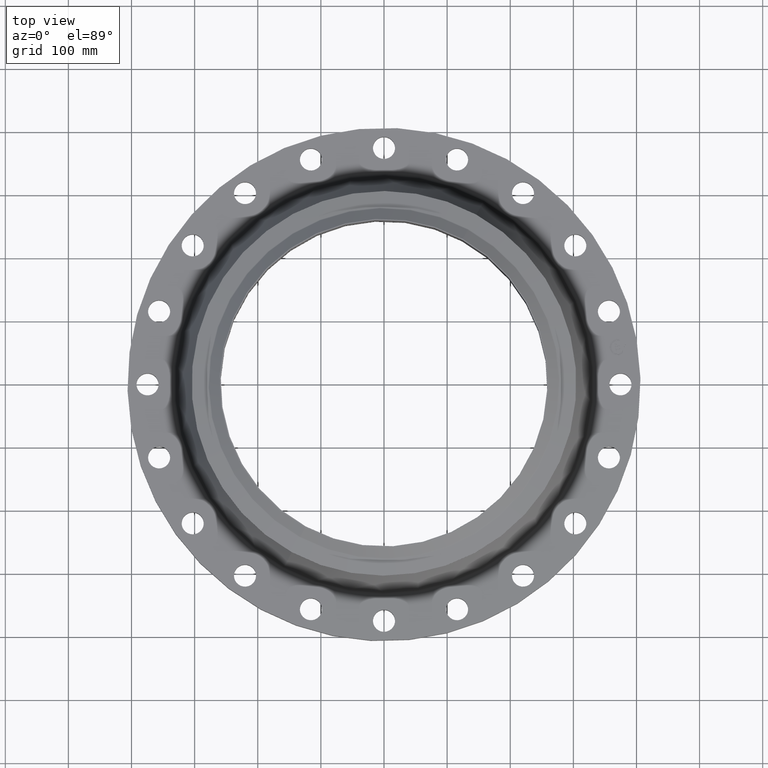
[diagram: clean part render]
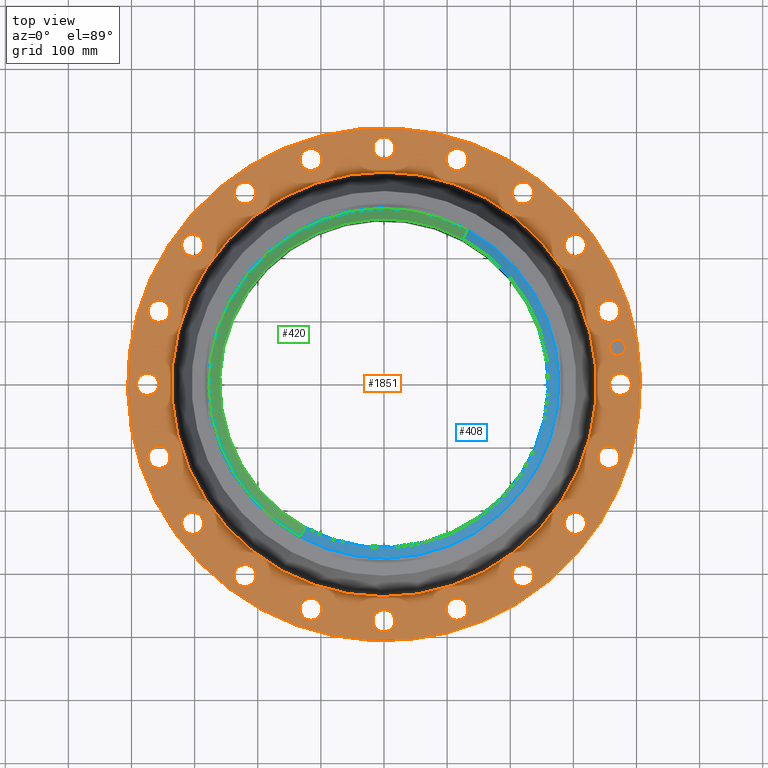
[diagram: same view with three faces highlighted in distinct colors, each labeled with its STEP entity id]
A machine part, top view with three faces highlighted in distinct colors.
Their STEP definitions:

[orange] entity #1851 — the highlighted planar face has unit normal (0, 0, -1).
#65=AXIS2_PLACEMENT_3D('Circle Axis2P3D',#63,#64,$) ;
#82=AXIS2_PLACEMENT_3D('Circle Axis2P3D',#80,#81,$) ;
#115=AXIS2_PLACEMENT_3D('Circle Axis2P3D',#113,#114,$) ;
#139=AXIS2_PLACEMENT_3D('Circle Axis2P3D',#137,#138,$) ;
#156=AXIS2_PLACEMENT_3D('Circle Axis2P3D',#154,#155,$) ;
#191=AXIS2_PLACEMENT_3D('Circle Axis2P3D',#189,#190,$) ;
#944=AXIS2_PLACEMENT_3D('Circle Axis2P3D',#942,#943,$) ;
#956=AXIS2_PLACEMENT_3D('Circle Axis2P3D',#954,#955,$) ;
#987=AXIS2_PLACEMENT_3D('Circle Axis2P3D',#985,#986,$) ;
#999=AXIS2_PLACEMENT_3D('Circle Axis2P3D',#997,#998,$) ;
#1030=AXIS2_PLACEMENT_3D('Circle Axis2P3D',#1028,#1029,$) ;
#1042=AXIS2_PLACEMENT_3D('Circle Axis2P3D',#1040,#1041,$) ;
#1073=AXIS2_PLACEMENT_3D('Circle Axis2P3D',#1071,#1072,$) ;
#1085=AXIS2_PLACEMENT_3D('Circle Axis2P3D',#1083,#1084,$) ;
#1116=AXIS2_PLACEMENT_3D('Circle Axis2P3D',#1114,#1115,$) ;
#1128=AXIS2_PLACEMENT_3D('Circle Axis2P3D',#1126,#1127,$) ;
#1159=AXIS2_PLACEMENT_3D('Circle Axis2P3D',#1157,#1158,$) ;
#1171=AXIS2_PLACEMENT_3D('Circle Axis2P3D',#1169,#1170,$) ;
#1202=AXIS2_PLACEMENT_3D('Circle Axis2P3D',#1200,#1201,$) ;
#1214=AXIS2_PLACEMENT_3D('Circle Axis2P3D',#1212,#1213,$) ;
#1245=AXIS2_PLACEMENT_3D('Circle Axis2P3D',#1243,#1244,$) ;
#1257=AXIS2_PLACEMENT_3D('Circle Axis2P3D',#1255,#1256,$) ;
#1288=AXIS2_PLACEMENT_3D('Circle Axis2P3D',#1286,#1287,$) ;
#1300=AXIS2_PLACEMENT_3D('Circle Axis2P3D',#1298,#1299,$) ;
#1331=AXIS2_PLACEMENT_3D('Circle Axis2P3D',#1329,#1330,$) ;
#1343=AXIS2_PLACEMENT_3D('Circle Axis2P3D',#1341,#1342,$) ;
#1374=AXIS2_PLACEMENT_3D('Circle Axis2P3D',#1372,#1373,$) ;
#1386=AXIS2_PLACEMENT_3D('Circle Axis2P3D',#1384,#1385,$) ;
#1417=AXIS2_PLACEMENT_3D('Circle Axis2P3D',#1415,#1416,$) ;
#1429=AXIS2_PLACEMENT_3D('Circle Axis2P3D',#1427,#1428,$) ;
#1460=AXIS2_PLACEMENT_3D('Circle Axis2P3D',#1458,#1459,$) ;
#1472=AXIS2_PLACEMENT_3D('Circle Axis2P3D',#1470,#1471,$) ;
#1503=AXIS2_PLACEMENT_3D('Circle Axis2P3D',#1501,#1502,$) ;
#1515=AXIS2_PLACEMENT_3D('Circle Axis2P3D',#1513,#1514,$) ;
#1546=AXIS2_PLACEMENT_3D('Circle Axis2P3D',#1544,#1545,$) ;
#1558=AXIS2_PLACEMENT_3D('Circle Axis2P3D',#1556,#1557,$) ;
#1589=AXIS2_PLACEMENT_3D('Circle Axis2P3D',#1587,#1588,$) ;
#1601=AXIS2_PLACEMENT_3D('Circle Axis2P3D',#1599,#1600,$) ;
#1632=AXIS2_PLACEMENT_3D('Circle Axis2P3D',#1630,#1631,$) ;
#1644=AXIS2_PLACEMENT_3D('Circle Axis2P3D',#1642,#1643,$) ;
#1675=AXIS2_PLACEMENT_3D('Circle Axis2P3D',#1673,#1674,$) ;
#1687=AXIS2_PLACEMENT_3D('Circle Axis2P3D',#1685,#1686,$) ;
#1718=AXIS2_PLACEMENT_3D('Circle Axis2P3D',#1716,#1717,$) ;
#1730=AXIS2_PLACEMENT_3D('Circle Axis2P3D',#1728,#1729,$) ;
#1743=AXIS2_PLACEMENT_3D('Plane Axis2P3D',#1740,#1741,#1742) ;
#1835=AXIS2_PLACEMENT_3D('Circle Axis2P3D',#1833,#1834,$) ;
#1844=AXIS2_PLACEMENT_3D('Circle Axis2P3D',#1842,#1843,$) ;
#46=CARTESIAN_POINT('Vertex',(14.1444680324,0.330803621638,1.88000000001)) ;
#60=CARTESIAN_POINT('Vertex',(15.3555319678,-0.330803621638,1.88000000001)) ;
#63=CARTESIAN_POINT('Axis2P3D Location',(14.7500000001,0.,1.88000000001)) ;
#80=CARTESIAN_POINT('Axis2P3D Location',(14.7500000001,0.,1.88000000001)) ;
#110=CARTESIAN_POINT('Vertex',(-7.6708086177,-14.0413209903,1.88000000001)) ;
#113=CARTESIAN_POINT('Axis2P3D Location',(0.,0.,1.88000000001)) ;
#117=CARTESIAN_POINT('Vertex',(7.6708086177,14.0413209903,1.88000000001)) ;
#137=CARTESIAN_POINT('Axis2P3D Location',(0.,0.,1.88000000001)) ;
#154=CARTESIAN_POINT('Axis2P3D Location',(0.,0.,1.88000000001)) ;
#158=CARTESIAN_POINT('Vertex',(6.34985835979,11.6233377622,1.88000000001)) ;
#160=CARTESIAN_POINT('Vertex',(-6.34985835979,-11.6233377622,1.88000000001)) ;
#189=CARTESIAN_POINT('Axis2P3D Location',(0.,0.,1.88000000001)) ;
#932=CARTESIAN_POINT('Vertex',(-13.5544124326,4.05626805842,1.88000000001)) ;
#939=CARTESIAN_POINT('Vertex',(-14.5017547982,5.05973327568,1.88000000001)) ;
#942=CARTESIAN_POINT('Axis2P3D Location',(-14.0280836154,4.55800066705,1.88000000001)) ;
#954=CARTESIAN_POINT('Axis2P3D Location',(-14.0280836154,4.55800066705,1.88000000001)) ;
#975=CARTESIAN_POINT('Vertex',(11.6375565048,-8.04628395923,1.88000000001)) ;
#982=CARTESIAN_POINT('Vertex',(12.2284448294,-9.29338098346,1.88000000001)) ;
#985=CARTESIAN_POINT('Axis2P3D Location',(11.9330006671,-8.66983247135,1.88000000001)) ;
#997=CARTESIAN_POINT('Axis2P3D Location',(11.9330006671,-8.66983247135,1.88000000001)) ;
#1018=CARTESIAN_POINT('Vertex',(-11.6375565048,8.04628395923,1.88000000001)) ;
#1025=CARTESIAN_POINT('Vertex',(-12.2284448294,9.29338098346,1.88000000001)) ;
#1028=CARTESIAN_POINT('Axis2P3D Location',(-11.9330006671,8.66983247135,1.88000000001)) ;
#1040=CARTESIAN_POINT('Axis2P3D Location',(-11.9330006671,8.66983247135,1.88000000001)) ;
#1061=CARTESIAN_POINT('Vertex',(8.58153546265,-11.2486735244,1.88000000001)) ;
#1068=CARTESIAN_POINT('Vertex',(8.75812948005,-12.6173278098,1.88000000001)) ;
#1071=CARTESIAN_POINT('Axis2P3D Location',(8.66983247135,-11.9330006671,1.88000000001)) ;
#1083=CARTESIAN_POINT('Axis2P3D Location',(8.66983247135,-11.9330006671,1.88000000001)) ;
#1104=CARTESIAN_POINT('Vertex',(-8.58153546265,11.2486735244,1.88000000001)) ;
#1111=CARTESIAN_POINT('Vertex',(-8.75812948005,12.6173278098,1.88000000001)) ;
#1114=CARTESIAN_POINT('Axis2P3D Location',(-8.66983247135,11.9330006671,1.88000000001)) ;
#1126=CARTESIAN_POINT('Axis2P3D Location',(-8.66983247135,11.9330006671,1.88000000001)) ;
#1147=CARTESIAN_POINT('Vertex',(4.68549393836,-13.3499645508,1.88000000001)) ;
#1154=CARTESIAN_POINT('Vertex',(4.43050739573,-14.70620268,1.88000000001)) ;
#1157=CARTESIAN_POINT('Axis2P3D Location',(4.55800066705,-14.0280836154,1.88000000001)) ;
#1169=CARTESIAN_POINT('Axis2P3D Location',(4.55800066705,-14.0280836154,1.88000000001)) ;
#1190=CARTESIAN_POINT('Vertex',(-4.68549393836,13.3499645508,1.88000000001)) ;
#1197=CARTESIAN_POINT('Vertex',(-4.43050739573,14.70620268,1.88000000001)) ;
#1200=CARTESIAN_POINT('Axis2P3D Location',(-4.55800066705,14.0280836154,1.88000000001)) ;
#1212=CARTESIAN_POINT('Axis2P3D Location',(-4.55800066705,14.0280836154,1.88000000001)) ;
#1233=CARTESIAN_POINT('Vertex',(0.330803621638,-14.1444680324,1.88000000001)) ;
#1240=CARTESIAN_POINT('Vertex',(-0.330803621638,-15.3555319678,1.88000000001)) ;
#1243=CARTESIAN_POINT('Axis2P3D Location',(4.17833493703E-015,-14.7500000001,1.88000000001)) ;
#1255=CARTESIAN_POINT('Axis2P3D Location',(4.17833493703E-015,-14.7500000001,1.88000000001)) ;
#1276=CARTESIAN_POINT('Vertex',(-0.330803621638,14.1444680324,1.88000000001)) ;
#1283=CARTESIAN_POINT('Vertex',(0.330803621638,15.3555319678,1.88000000001)) ;
#1286=CARTESIAN_POINT('Axis2P3D Location',(-1.58101627338E-014,14.7500000001,1.88000000001)) ;
#1298=CARTESIAN_POINT('Axis2P3D Location',(-1.58101627338E-014,14.7500000001,1.88000000001)) ;
#1319=CARTESIAN_POINT('Vertex',(-4.05626805842,-13.5544124326,1.88000000001)) ;
#1326=CARTESIAN_POINT('Vertex',(-5.05973327568,-14.5017547982,1.88000000001)) ;
#1329=CARTESIAN_POINT('Axis2P3D Location',(-4.55800066705,-14.0280836154,1.88000000001)) ;
#1341=CARTESIAN_POINT('Axis2P3D Location',(-4.55800066705,-14.0280836154,1.88000000001)) ;
#1362=CARTESIAN_POINT('Vertex',(4.05626805842,13.5544124326,1.88000000001)) ;
#1369=CARTESIAN_POINT('Vertex',(5.05973327568,14.5017547982,1.88000000001)) ;
#1372=CARTESIAN_POINT('Axis2P3D Location',(4.55800066705,14.0280836154,1.88000000001)) ;
#1384=CARTESIAN_POINT('Axis2P3D Location',(4.55800066705,14.0280836154,1.88000000001)) ;
#1405=CARTESIAN_POINT('Vertex',(-8.04628395923,-11.6375565048,1.88000000001)) ;
#1412=CARTESIAN_POINT('Vertex',(-9.29338098346,-12.2284448294,1.88000000001)) ;
#1415=CARTESIAN_POINT('Axis2P3D Location',(-8.66983247135,-11.9330006671,1.88000000001)) ;
#1427=CARTESIAN_POINT('Axis2P3D Location',(-8.66983247135,-11.9330006671,1.88000000001)) ;
#1448=CARTESIAN_POINT('Vertex',(8.04628395923,11.6375565048,1.88000000001)) ;
#1455=CARTESIAN_POINT('Vertex',(9.29338098346,12.2284448294,1.88000000001)) ;
#1458=CARTESIAN_POINT('Axis2P3D Location',(8.66983247135,11.9330006671,1.88000000001)) ;
#1470=CARTESIAN_POINT('Axis2P3D Location',(8.66983247135,11.9330006671,1.88000000001)) ;
#1491=CARTESIAN_POINT('Vertex',(-11.2486735244,-8.58153546265,1.88000000001)) ;
#1498=CARTESIAN_POINT('Vertex',(-12.6173278098,-8.75812948005,1.88000000001)) ;
#1501=CARTESIAN_POINT('Axis2P3D Location',(-11.9330006671,-8.66983247135,1.88000000001)) ;
#1513=CARTESIAN_POINT('Axis2P3D Location',(-11.9330006671,-8.66983247135,1.88000000001)) ;
#1534=CARTESIAN_POINT('Vertex',(11.2486735244,8.58153546265,1.88000000001)) ;
#1541=CARTESIAN_POINT('Vertex',(12.6173278098,8.75812948005,1.88000000001)) ;
#1544=CARTESIAN_POINT('Axis2P3D Location',(11.9330006671,8.66983247135,1.88000000001)) ;
#1556=CARTESIAN_POINT('Axis2P3D Location',(11.9330006671,8.66983247135,1.88000000001)) ;
#1577=CARTESIAN_POINT('Vertex',(-13.3499645508,-4.68549393836,1.88000000001)) ;
#1584=CARTESIAN_POINT('Vertex',(-14.70620268,-4.43050739573,1.88000000001)) ;
#1587=CARTESIAN_POINT('Axis2P3D Location',(-14.0280836154,-4.55800066705,1.88000000001)) ;
#1599=CARTESIAN_POINT('Axis2P3D Location',(-14.0280836154,-4.55800066705,1.88000000001)) ;
#1620=CARTESIAN_POINT('Vertex',(13.3499645508,4.68549393836,1.88000000001)) ;
#1627=CARTESIAN_POINT('Vertex',(14.70620268,4.43050739573,1.88000000001)) ;
#1630=CARTESIAN_POINT('Axis2P3D Location',(14.0280836154,4.55800066705,1.88000000001)) ;
#1642=CARTESIAN_POINT('Axis2P3D Location',(14.0280836154,4.55800066705,1.88000000001)) ;
#1663=CARTESIAN_POINT('Vertex',(-14.1444680324,-0.330803621638,1.88000000001)) ;
#1670=CARTESIAN_POINT('Vertex',(-15.3555319678,0.330803621638,1.88000000001)) ;
#1673=CARTESIAN_POINT('Axis2P3D Location',(-14.7500000001,-8.35666987406E-015,1.88000000001)) ;
#1685=CARTESIAN_POINT('Axis2P3D Location',(-14.7500000001,-8.35666987406E-015,1.88000000001)) ;
#1706=CARTESIAN_POINT('Vertex',(13.5544124326,-4.05626805842,1.88000000001)) ;
#1713=CARTESIAN_POINT('Vertex',(14.5017547982,-5.05973327568,1.88000000001)) ;
#1716=CARTESIAN_POINT('Axis2P3D Location',(14.0280836154,-4.55800066705,1.88000000001)) ;
#1728=CARTESIAN_POINT('Axis2P3D Location',(14.0280836154,-4.55800066705,1.88000000001)) ;
#1740=CARTESIAN_POINT('Axis2P3D Location',(0.,16.0000000001,1.88000000001)) ;
#1833=CARTESIAN_POINT('Axis2P3D Location',(14.5684030238,2.30740835935,1.88000000001)) ;
#1837=CARTESIAN_POINT('Vertex',(14.4901859706,2.80125139776,1.88000000001)) ;
#1839=CARTESIAN_POINT('Vertex',(14.6466200771,1.81356532095,1.88000000001)) ;
#1842=CARTESIAN_POINT('Axis2P3D Location',(14.5684030238,2.30740835935,1.88000000001)) ;
#64=DIRECTION('Axis2P3D Direction',(0.,-0.,-0.0393700787402)) ;
#81=DIRECTION('Axis2P3D Direction',(0.,-0.,-0.0393700787402)) ;
#114=DIRECTION('Axis2P3D Direction',(0.,0.,-0.0393700787402)) ;
#138=DIRECTION('Axis2P3D Direction',(0.,0.,-0.0393700787402)) ;
#155=DIRECTION('Axis2P3D Direction',(0.,0.,-0.0393700787402)) ;
#190=DIRECTION('Axis2P3D Direction',(0.,0.,-0.0393700787402)) ;
#943=DIRECTION('Axis2P3D Direction',(0.,0.,-0.0393700787402)) ;
#955=DIRECTION('Axis2P3D Direction',(0.,0.,-0.0393700787402)) ;
#986=DIRECTION('Axis2P3D Direction',(0.,-0.,-0.0393700787402)) ;
#998=DIRECTION('Axis2P3D Direction',(0.,-0.,-0.0393700787402)) ;
#1029=DIRECTION('Axis2P3D Direction',(0.,0.,-0.0393700787402)) ;
#1041=DIRECTION('Axis2P3D Direction',(0.,0.,-0.0393700787402)) ;
#1072=DIRECTION('Axis2P3D Direction',(0.,-0.,-0.0393700787402)) ;
#1084=DIRECTION('Axis2P3D Direction',(0.,-0.,-0.0393700787402)) ;
#1115=DIRECTION('Axis2P3D Direction',(0.,0.,-0.0393700787402)) ;
#1127=DIRECTION('Axis2P3D Direction',(0.,0.,-0.0393700787402)) ;
#1158=DIRECTION('Axis2P3D Direction',(0.,-0.,-0.0393700787402)) ;
#1170=DIRECTION('Axis2P3D Direction',(0.,-0.,-0.0393700787402)) ;
#1201=DIRECTION('Axis2P3D Direction',(0.,0.,-0.0393700787402)) ;
#1213=DIRECTION('Axis2P3D Direction',(0.,0.,-0.0393700787402)) ;
#1244=DIRECTION('Axis2P3D Direction',(0.,-0.,-0.0393700787402)) ;
#1256=DIRECTION('Axis2P3D Direction',(0.,-0.,-0.0393700787402)) ;
#1287=DIRECTION('Axis2P3D Direction',(0.,0.,-0.0393700787402)) ;
#1299=DIRECTION('Axis2P3D Direction',(0.,0.,-0.0393700787402)) ;
#1330=DIRECTION('Axis2P3D Direction',(-0.,0.,-0.0393700787402)) ;
#1342=DIRECTION('Axis2P3D Direction',(-0.,0.,-0.0393700787402)) ;
#1373=DIRECTION('Axis2P3D Direction',(0.,0.,-0.0393700787402)) ;
#1385=DIRECTION('Axis2P3D Direction',(0.,0.,-0.0393700787402)) ;
#1416=DIRECTION('Axis2P3D Direction',(-0.,0.,-0.0393700787402)) ;
#1428=DIRECTION('Axis2P3D Direction',(-0.,0.,-0.0393700787402)) ;
#1459=DIRECTION('Axis2P3D Direction',(0.,0.,-0.0393700787402)) ;
#1471=DIRECTION('Axis2P3D Direction',(0.,0.,-0.0393700787402)) ;
#1502=DIRECTION('Axis2P3D Direction',(-0.,0.,-0.0393700787402)) ;
#1514=DIRECTION('Axis2P3D Direction',(-0.,0.,-0.0393700787402)) ;
#1545=DIRECTION('Axis2P3D Direction',(0.,0.,-0.0393700787402)) ;
#1557=DIRECTION('Axis2P3D Direction',(0.,0.,-0.0393700787402)) ;
#1588=DIRECTION('Axis2P3D Direction',(-0.,0.,-0.0393700787402)) ;
#1600=DIRECTION('Axis2P3D Direction',(-0.,0.,-0.0393700787402)) ;
#1631=DIRECTION('Axis2P3D Direction',(0.,0.,-0.0393700787402)) ;
#1643=DIRECTION('Axis2P3D Direction',(0.,0.,-0.0393700787402)) ;
#1674=DIRECTION('Axis2P3D Direction',(-0.,0.,-0.0393700787402)) ;
#1686=DIRECTION('Axis2P3D Direction',(-0.,0.,-0.0393700787402)) ;
#1717=DIRECTION('Axis2P3D Direction',(0.,-0.,-0.0393700787402)) ;
#1729=DIRECTION('Axis2P3D Direction',(0.,-0.,-0.0393700787402)) ;
#1741=DIRECTION('Axis2P3D Direction',(0.,0.,-0.0393700787402)) ;
#1742=DIRECTION('Axis2P3D XDirection',(0.0393700787402,0.,0.)) ;
#1834=DIRECTION('Axis2P3D Direction',(0.,0.,-0.0393700787402)) ;
#1843=DIRECTION('Axis2P3D Direction',(0.,0.,-0.0393700787402)) ;
#1746=ORIENTED_EDGE('',*,*,#141,.F.) ;
#1747=ORIENTED_EDGE('',*,*,#119,.F.) ;
#1750=ORIENTED_EDGE('',*,*,#67,.T.) ;
#1751=ORIENTED_EDGE('',*,*,#84,.T.) ;
#1754=ORIENTED_EDGE('',*,*,#193,.T.) ;
#1755=ORIENTED_EDGE('',*,*,#162,.T.) ;
#1758=ORIENTED_EDGE('',*,*,#1732,.T.) ;
#1759=ORIENTED_EDGE('',*,*,#1720,.T.) ;
#1762=ORIENTED_EDGE('',*,*,#1001,.T.) ;
#1763=ORIENTED_EDGE('',*,*,#989,.T.) ;
#1766=ORIENTED_EDGE('',*,*,#1087,.T.) ;
#1767=ORIENTED_EDGE('',*,*,#1075,.T.) ;
#1770=ORIENTED_EDGE('',*,*,#1173,.T.) ;
#1771=ORIENTED_EDGE('',*,*,#1161,.T.) ;
#1774=ORIENTED_EDGE('',*,*,#1259,.T.) ;
#1775=ORIENTED_EDGE('',*,*,#1247,.T.) ;
#1778=ORIENTED_EDGE('',*,*,#1345,.T.) ;
#1779=ORIENTED_EDGE('',*,*,#1333,.T.) ;
#1782=ORIENTED_EDGE('',*,*,#1431,.T.) ;
#1783=ORIENTED_EDGE('',*,*,#1419,.T.) ;
#1786=ORIENTED_EDGE('',*,*,#1517,.T.) ;
#1787=ORIENTED_EDGE('',*,*,#1505,.T.) ;
#1790=ORIENTED_EDGE('',*,*,#1603,.T.) ;
#1791=ORIENTED_EDGE('',*,*,#1591,.T.) ;
#1794=ORIENTED_EDGE('',*,*,#1689,.T.) ;
#1795=ORIENTED_EDGE('',*,*,#1677,.T.) ;
#1798=ORIENTED_EDGE('',*,*,#958,.T.) ;
#1799=ORIENTED_EDGE('',*,*,#946,.T.) ;
#1802=ORIENTED_EDGE('',*,*,#1044,.T.) ;
#1803=ORIENTED_EDGE('',*,*,#1032,.T.) ;
#1806=ORIENTED_EDGE('',*,*,#1130,.T.) ;
#1807=ORIENTED_EDGE('',*,*,#1118,.T.) ;
#1810=ORIENTED_EDGE('',*,*,#1216,.T.) ;
#1811=ORIENTED_EDGE('',*,*,#1204,.T.) ;
#1814=ORIENTED_EDGE('',*,*,#1302,.T.) ;
#1815=ORIENTED_EDGE('',*,*,#1290,.T.) ;
#1818=ORIENTED_EDGE('',*,*,#1388,.T.) ;
#1819=ORIENTED_EDGE('',*,*,#1376,.T.) ;
#1822=ORIENTED_EDGE('',*,*,#1474,.T.) ;
#1823=ORIENTED_EDGE('',*,*,#1462,.T.) ;
#1826=ORIENTED_EDGE('',*,*,#1560,.T.) ;
#1827=ORIENTED_EDGE('',*,*,#1548,.T.) ;
#1830=ORIENTED_EDGE('',*,*,#1646,.T.) ;
#1831=ORIENTED_EDGE('',*,*,#1634,.T.) ;
#1848=ORIENTED_EDGE('',*,*,#1841,.T.) ;
#1849=ORIENTED_EDGE('',*,*,#1846,.T.) ;
#1752=FACE_BOUND('',#1749,.T.) ;
#1756=FACE_BOUND('',#1753,.T.) ;
#1760=FACE_BOUND('',#1757,.T.) ;
#1764=FACE_BOUND('',#1761,.T.) ;
#1768=FACE_BOUND('',#1765,.T.) ;
#1772=FACE_BOUND('',#1769,.T.) ;
#1776=FACE_BOUND('',#1773,.T.) ;
#1780=FACE_BOUND('',#1777,.T.) ;
#1784=FACE_BOUND('',#1781,.T.) ;
#1788=FACE_BOUND('',#1785,.T.) ;
#1792=FACE_BOUND('',#1789,.T.) ;
#1796=FACE_BOUND('',#1793,.T.) ;
#1800=FACE_BOUND('',#1797,.T.) ;
#1804=FACE_BOUND('',#1801,.T.) ;
#1808=FACE_BOUND('',#1805,.T.) ;
#1812=FACE_BOUND('',#1809,.T.) ;
#1816=FACE_BOUND('',#1813,.T.) ;
#1820=FACE_BOUND('',#1817,.T.) ;
#1824=FACE_BOUND('',#1821,.T.) ;
#1828=FACE_BOUND('',#1825,.T.) ;
#1832=FACE_BOUND('',#1829,.T.) ;
#1850=FACE_BOUND('',#1847,.T.) ;
#1851=ADVANCED_FACE('PartBody',(#1748,#1752,#1756,#1760,#1764,#1768,#1772,#1776,#1780,#1784,#1788,#1792,#1796,#1800,#1804,#1808,#1812,#1816,#1820,#1824,#1828,#1832,#1850),#1744,.F.) ;
#66=CIRCLE('generated circle',#65,0.690000000003) ;
#83=CIRCLE('generated circle',#82,0.690000000003) ;
#116=CIRCLE('generated circle',#115,16.0000000001) ;
#140=CIRCLE('generated circle',#139,16.0000000001) ;
#157=CIRCLE('generated circle',#156,13.2447227953) ;
#192=CIRCLE('generated circle',#191,13.2447227953) ;
#945=CIRCLE('generated circle',#944,0.690000000003) ;
#957=CIRCLE('generated circle',#956,0.690000000003) ;
#988=CIRCLE('generated circle',#987,0.690000000003) ;
#1000=CIRCLE('generated circle',#999,0.690000000003) ;
#1031=CIRCLE('generated circle',#1030,0.690000000003) ;
#1043=CIRCLE('generated circle',#1042,0.690000000003) ;
#1074=CIRCLE('generated circle',#1073,0.690000000003) ;
#1086=CIRCLE('generated circle',#1085,0.690000000003) ;
#1117=CIRCLE('generated circle',#1116,0.690000000003) ;
#1129=CIRCLE('generated circle',#1128,0.690000000003) ;
#1160=CIRCLE('generated circle',#1159,0.690000000003) ;
#1172=CIRCLE('generated circle',#1171,0.690000000003) ;
#1203=CIRCLE('generated circle',#1202,0.690000000003) ;
#1215=CIRCLE('generated circle',#1214,0.690000000003) ;
#1246=CIRCLE('generated circle',#1245,0.690000000003) ;
#1258=CIRCLE('generated circle',#1257,0.690000000003) ;
#1289=CIRCLE('generated circle',#1288,0.690000000003) ;
#1301=CIRCLE('generated circle',#1300,0.690000000003) ;
#1332=CIRCLE('generated circle',#1331,0.690000000003) ;
#1344=CIRCLE('generated circle',#1343,0.690000000003) ;
#1375=CIRCLE('generated circle',#1374,0.690000000003) ;
#1387=CIRCLE('generated circle',#1386,0.690000000003) ;
#1418=CIRCLE('generated circle',#1417,0.690000000003) ;
#1430=CIRCLE('generated circle',#1429,0.690000000003) ;
#1461=CIRCLE('generated circle',#1460,0.690000000003) ;
#1473=CIRCLE('generated circle',#1472,0.690000000003) ;
#1504=CIRCLE('generated circle',#1503,0.690000000003) ;
#1516=CIRCLE('generated circle',#1515,0.690000000003) ;
#1547=CIRCLE('generated circle',#1546,0.690000000003) ;
#1559=CIRCLE('generated circle',#1558,0.690000000003) ;
#1590=CIRCLE('generated circle',#1589,0.690000000003) ;
#1602=CIRCLE('generated circle',#1601,0.690000000003) ;
#1633=CIRCLE('generated circle',#1632,0.690000000003) ;
#1645=CIRCLE('generated circle',#1644,0.690000000003) ;
#1676=CIRCLE('generated circle',#1675,0.690000000003) ;
#1688=CIRCLE('generated circle',#1687,0.690000000003) ;
#1719=CIRCLE('generated circle',#1718,0.690000000003) ;
#1731=CIRCLE('generated circle',#1730,0.690000000003) ;
#1836=CIRCLE('generated circle',#1835,0.499998853999) ;
#1845=CIRCLE('generated circle',#1844,0.499998853999) ;
#67=EDGE_CURVE('',#47,#61,#66,.T.) ;
#84=EDGE_CURVE('',#61,#47,#83,.T.) ;
#119=EDGE_CURVE('',#111,#118,#116,.T.) ;
#141=EDGE_CURVE('',#118,#111,#140,.T.) ;
#162=EDGE_CURVE('',#159,#161,#157,.T.) ;
#193=EDGE_CURVE('',#161,#159,#192,.T.) ;
#946=EDGE_CURVE('',#933,#940,#945,.T.) ;
#958=EDGE_CURVE('',#940,#933,#957,.T.) ;
#989=EDGE_CURVE('',#976,#983,#988,.T.) ;
#1001=EDGE_CURVE('',#983,#976,#1000,.T.) ;
#1032=EDGE_CURVE('',#1019,#1026,#1031,.T.) ;
#1044=EDGE_CURVE('',#1026,#1019,#1043,.T.) ;
#1075=EDGE_CURVE('',#1062,#1069,#1074,.T.) ;
#1087=EDGE_CURVE('',#1069,#1062,#1086,.T.) ;
#1118=EDGE_CURVE('',#1105,#1112,#1117,.T.) ;
#1130=EDGE_CURVE('',#1112,#1105,#1129,.T.) ;
#1161=EDGE_CURVE('',#1148,#1155,#1160,.T.) ;
#1173=EDGE_CURVE('',#1155,#1148,#1172,.T.) ;
#1204=EDGE_CURVE('',#1191,#1198,#1203,.T.) ;
#1216=EDGE_CURVE('',#1198,#1191,#1215,.T.) ;
#1247=EDGE_CURVE('',#1234,#1241,#1246,.T.) ;
#1259=EDGE_CURVE('',#1241,#1234,#1258,.T.) ;
#1290=EDGE_CURVE('',#1277,#1284,#1289,.T.) ;
#1302=EDGE_CURVE('',#1284,#1277,#1301,.T.) ;
#1333=EDGE_CURVE('',#1320,#1327,#1332,.T.) ;
#1345=EDGE_CURVE('',#1327,#1320,#1344,.T.) ;
#1376=EDGE_CURVE('',#1363,#1370,#1375,.T.) ;
#1388=EDGE_CURVE('',#1370,#1363,#1387,.T.) ;
#1419=EDGE_CURVE('',#1406,#1413,#1418,.T.) ;
#1431=EDGE_CURVE('',#1413,#1406,#1430,.T.) ;
#1462=EDGE_CURVE('',#1449,#1456,#1461,.T.) ;
#1474=EDGE_CURVE('',#1456,#1449,#1473,.T.) ;
#1505=EDGE_CURVE('',#1492,#1499,#1504,.T.) ;
#1517=EDGE_CURVE('',#1499,#1492,#1516,.T.) ;
#1548=EDGE_CURVE('',#1535,#1542,#1547,.T.) ;
#1560=EDGE_CURVE('',#1542,#1535,#1559,.T.) ;
#1591=EDGE_CURVE('',#1578,#1585,#1590,.T.) ;
#1603=EDGE_CURVE('',#1585,#1578,#1602,.T.) ;
#1634=EDGE_CURVE('',#1621,#1628,#1633,.T.) ;
#1646=EDGE_CURVE('',#1628,#1621,#1645,.T.) ;
#1677=EDGE_CURVE('',#1664,#1671,#1676,.T.) ;
#1689=EDGE_CURVE('',#1671,#1664,#1688,.T.) ;
#1720=EDGE_CURVE('',#1707,#1714,#1719,.T.) ;
#1732=EDGE_CURVE('',#1714,#1707,#1731,.T.) ;
#1841=EDGE_CURVE('',#1838,#1840,#1836,.T.) ;
#1846=EDGE_CURVE('',#1840,#1838,#1845,.T.) ;
#1745=EDGE_LOOP('',(#1746,#1747)) ;
#1749=EDGE_LOOP('',(#1750,#1751)) ;
#1753=EDGE_LOOP('',(#1754,#1755)) ;
#1757=EDGE_LOOP('',(#1758,#1759)) ;
#1761=EDGE_LOOP('',(#1762,#1763)) ;
#1765=EDGE_LOOP('',(#1766,#1767)) ;
#1769=EDGE_LOOP('',(#1770,#1771)) ;
#1773=EDGE_LOOP('',(#1774,#1775)) ;
#1777=EDGE_LOOP('',(#1778,#1779)) ;
#1781=EDGE_LOOP('',(#1782,#1783)) ;
#1785=EDGE_LOOP('',(#1786,#1787)) ;
#1789=EDGE_LOOP('',(#1790,#1791)) ;
#1793=EDGE_LOOP('',(#1794,#1795)) ;
#1797=EDGE_LOOP('',(#1798,#1799)) ;
#1801=EDGE_LOOP('',(#1802,#1803)) ;
#1805=EDGE_LOOP('',(#1806,#1807)) ;
#1809=EDGE_LOOP('',(#1810,#1811)) ;
#1813=EDGE_LOOP('',(#1814,#1815)) ;
#1817=EDGE_LOOP('',(#1818,#1819)) ;
#1821=EDGE_LOOP('',(#1822,#1823)) ;
#1825=EDGE_LOOP('',(#1826,#1827)) ;
#1829=EDGE_LOOP('',(#1830,#1831)) ;
#1847=EDGE_LOOP('',(#1848,#1849)) ;
#1748=FACE_OUTER_BOUND('',#1745,.T.) ;
#1744=PLANE('',#1743) ;
#47=VERTEX_POINT('',#46) ;
#61=VERTEX_POINT('',#60) ;
#111=VERTEX_POINT('',#110) ;
#118=VERTEX_POINT('',#117) ;
#159=VERTEX_POINT('',#158) ;
#161=VERTEX_POINT('',#160) ;
#933=VERTEX_POINT('',#932) ;
#940=VERTEX_POINT('',#939) ;
#976=VERTEX_POINT('',#975) ;
#983=VERTEX_POINT('',#982) ;
#1019=VERTEX_POINT('',#1018) ;
#1026=VERTEX_POINT('',#1025) ;
#1062=VERTEX_POINT('',#1061) ;
#1069=VERTEX_POINT('',#1068) ;
#1105=VERTEX_POINT('',#1104) ;
#1112=VERTEX_POINT('',#1111) ;
#1148=VERTEX_POINT('',#1147) ;
#1155=VERTEX_POINT('',#1154) ;
#1191=VERTEX_POINT('',#1190) ;
#1198=VERTEX_POINT('',#1197) ;
#1234=VERTEX_POINT('',#1233) ;
#1241=VERTEX_POINT('',#1240) ;
#1277=VERTEX_POINT('',#1276) ;
#1284=VERTEX_POINT('',#1283) ;
#1320=VERTEX_POINT('',#1319) ;
#1327=VERTEX_POINT('',#1326) ;
#1363=VERTEX_POINT('',#1362) ;
#1370=VERTEX_POINT('',#1369) ;
#1406=VERTEX_POINT('',#1405) ;
#1413=VERTEX_POINT('',#1412) ;
#1449=VERTEX_POINT('',#1448) ;
#1456=VERTEX_POINT('',#1455) ;
#1492=VERTEX_POINT('',#1491) ;
#1499=VERTEX_POINT('',#1498) ;
#1535=VERTEX_POINT('',#1534) ;
#1542=VERTEX_POINT('',#1541) ;
#1578=VERTEX_POINT('',#1577) ;
#1585=VERTEX_POINT('',#1584) ;
#1621=VERTEX_POINT('',#1620) ;
#1628=VERTEX_POINT('',#1627) ;
#1664=VERTEX_POINT('',#1663) ;
#1671=VERTEX_POINT('',#1670) ;
#1707=VERTEX_POINT('',#1706) ;
#1714=VERTEX_POINT('',#1713) ;
#1838=VERTEX_POINT('',#1837) ;
#1840=VERTEX_POINT('',#1839) ;

[blue] entity #408 — the highlighted conical surface has half-angle 52.5 deg.
#356=AXIS2_PLACEMENT_3D('Circle Axis2P3D',#354,#355,$) ;
#381=AXIS2_PLACEMENT_3D('Cone Axis2P3D',#378,#379,#380) ;
#399=AXIS2_PLACEMENT_3D('Circle Axis2P3D',#397,#398,$) ;
#344=CARTESIAN_POINT('Vertex',(-5.23232254183,-9.57770216885,5.49108306753)) ;
#351=CARTESIAN_POINT('Vertex',(5.23232254183,9.57770216885,5.49108306753)) ;
#354=CARTESIAN_POINT('Axis2P3D Location',(0.,0.,5.49108306753)) ;
#378=CARTESIAN_POINT('Axis2P3D Location',(0.,0.,6.00000000002)) ;
#383=CARTESIAN_POINT('Line Origine',(-5.07333701265,-9.28668110977,5.74554153378)) ;
#387=CARTESIAN_POINT('Vertex',(-4.91435148348,-8.99566005069,6.00000000002)) ;
#390=CARTESIAN_POINT('Line Origine',(5.07333701265,9.28668110977,5.74554153378)) ;
#394=CARTESIAN_POINT('Vertex',(4.91435148348,8.99566005069,6.00000000002)) ;
#397=CARTESIAN_POINT('Axis2P3D Location',(0.,0.,6.00000000002)) ;
#355=DIRECTION('Axis2P3D Direction',(0.,-0.,-0.0393700787402)) ;
#379=DIRECTION('Axis2P3D Direction',(-0.,-0.,-0.0393700787402)) ;
#380=DIRECTION('Axis2P3D XDirection',(-0.0188750212049,-0.0345504945626,0.)) ;
#384=DIRECTION('Vector Direction',(-0.014974561121,-0.02741075027,-0.023966985394)) ;
#391=DIRECTION('Vector Direction',(0.014974561121,0.02741075027,-0.023966985394)) ;
#398=DIRECTION('Axis2P3D Direction',(0.,-0.,-0.0393700787402)) ;
#385=VECTOR('Line Direction',#384,0.0393700787402) ;
#392=VECTOR('Line Direction',#391,0.0393700787402) ;
#403=ORIENTED_EDGE('',*,*,#389,.T.) ;
#404=ORIENTED_EDGE('',*,*,#358,.F.) ;
#405=ORIENTED_EDGE('',*,*,#396,.F.) ;
#406=ORIENTED_EDGE('',*,*,#401,.T.) ;
#408=ADVANCED_FACE('PartBody',(#407),#382,.T.) ;
#357=CIRCLE('generated circle',#356,10.9137334591) ;
#400=CIRCLE('generated circle',#399,10.2505) ;
#382=CONICAL_SURFACE('Cone',#381,10.2505,0.916297857297) ;
#358=EDGE_CURVE('',#352,#345,#357,.T.) ;
#389=EDGE_CURVE('',#388,#345,#386,.T.) ;
#396=EDGE_CURVE('',#395,#352,#393,.T.) ;
#401=EDGE_CURVE('',#395,#388,#400,.T.) ;
#402=EDGE_LOOP('',(#403,#404,#405,#406)) ;
#407=FACE_OUTER_BOUND('',#402,.T.) ;
#386=LINE('Line',#383,#385) ;
#393=LINE('Line',#390,#392) ;
#345=VERTEX_POINT('',#344) ;
#352=VERTEX_POINT('',#351) ;
#388=VERTEX_POINT('',#387) ;
#395=VERTEX_POINT('',#394) ;

[green] entity #420 — the highlighted conical surface has half-angle 52.5 deg.
#368=AXIS2_PLACEMENT_3D('Circle Axis2P3D',#366,#367,$) ;
#381=AXIS2_PLACEMENT_3D('Cone Axis2P3D',#378,#379,#380) ;
#411=AXIS2_PLACEMENT_3D('Circle Axis2P3D',#409,#410,$) ;
#344=CARTESIAN_POINT('Vertex',(-5.23232254183,-9.57770216885,5.49108306753)) ;
#351=CARTESIAN_POINT('Vertex',(5.23232254183,9.57770216885,5.49108306753)) ;
#366=CARTESIAN_POINT('Axis2P3D Location',(0.,0.,5.49108306753)) ;
#378=CARTESIAN_POINT('Axis2P3D Location',(0.,0.,6.00000000002)) ;
#383=CARTESIAN_POINT('Line Origine',(-5.07333701265,-9.28668110977,5.74554153378)) ;
#387=CARTESIAN_POINT('Vertex',(-4.91435148348,-8.99566005069,6.00000000002)) ;
#390=CARTESIAN_POINT('Line Origine',(5.07333701265,9.28668110977,5.74554153378)) ;
#394=CARTESIAN_POINT('Vertex',(4.91435148348,8.99566005069,6.00000000002)) ;
#409=CARTESIAN_POINT('Axis2P3D Location',(0.,0.,6.00000000002)) ;
#367=DIRECTION('Axis2P3D Direction',(0.,-0.,-0.0393700787402)) ;
#379=DIRECTION('Axis2P3D Direction',(-0.,-0.,-0.0393700787402)) ;
#380=DIRECTION('Axis2P3D XDirection',(-0.0188750212049,-0.0345504945626,0.)) ;
#384=DIRECTION('Vector Direction',(-0.014974561121,-0.02741075027,-0.023966985394)) ;
#391=DIRECTION('Vector Direction',(0.014974561121,0.02741075027,-0.023966985394)) ;
#410=DIRECTION('Axis2P3D Direction',(0.,-0.,-0.0393700787402)) ;
#385=VECTOR('Line Direction',#384,0.0393700787402) ;
#392=VECTOR('Line Direction',#391,0.0393700787402) ;
#415=ORIENTED_EDGE('',*,*,#396,.T.) ;
#416=ORIENTED_EDGE('',*,*,#370,.F.) ;
#417=ORIENTED_EDGE('',*,*,#389,.F.) ;
#418=ORIENTED_EDGE('',*,*,#413,.T.) ;
#420=ADVANCED_FACE('PartBody',(#419),#382,.T.) ;
#369=CIRCLE('generated circle',#368,10.9137334591) ;
#412=CIRCLE('generated circle',#411,10.2505) ;
#382=CONICAL_SURFACE('Cone',#381,10.2505,0.916297857297) ;
#370=EDGE_CURVE('',#345,#352,#369,.T.) ;
#389=EDGE_CURVE('',#388,#345,#386,.T.) ;
#396=EDGE_CURVE('',#395,#352,#393,.T.) ;
#413=EDGE_CURVE('',#388,#395,#412,.T.) ;
#414=EDGE_LOOP('',(#415,#416,#417,#418)) ;
#419=FACE_OUTER_BOUND('',#414,.T.) ;
#386=LINE('Line',#383,#385) ;
#393=LINE('Line',#390,#392) ;
#345=VERTEX_POINT('',#344) ;
#352=VERTEX_POINT('',#351) ;
#388=VERTEX_POINT('',#387) ;
#395=VERTEX_POINT('',#394) ;